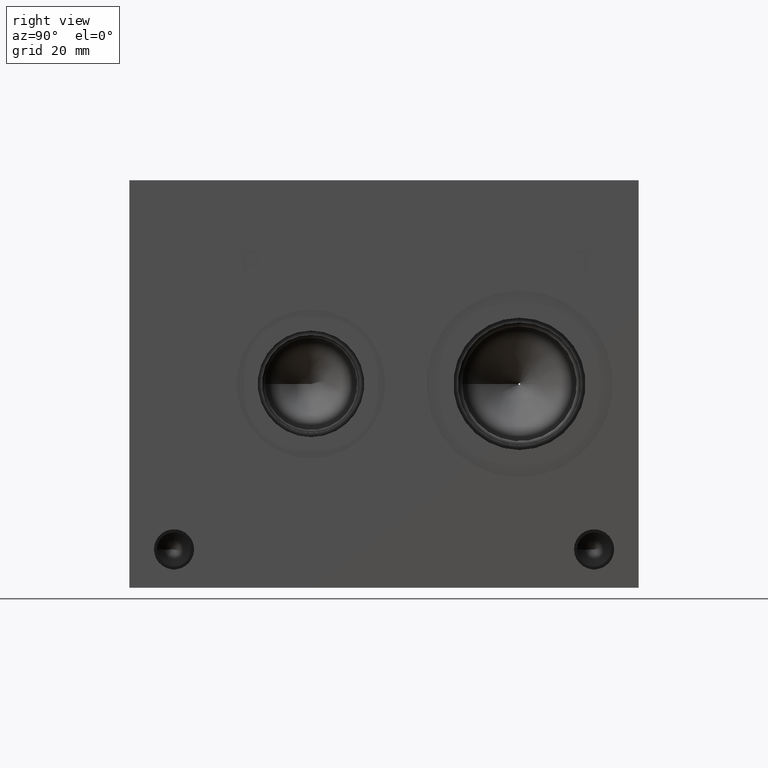
[diagram: clean part render]
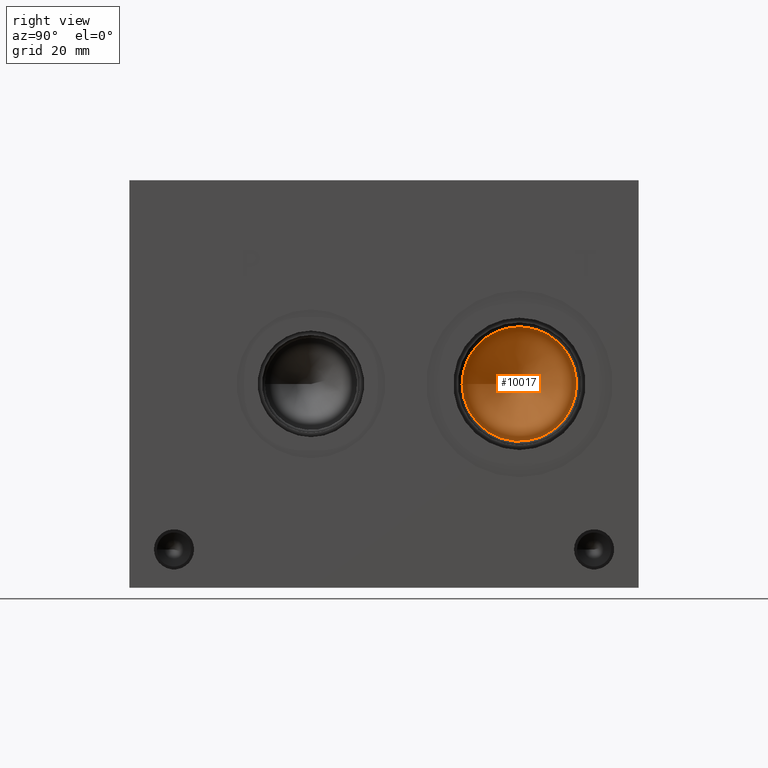
[diagram: same view with one face highlighted and labeled with its STEP entity id]
A machine part, right view. The second image highlights one B-rep face of the part: STEP entity #10017.
In plain terms, the highlighted conical surface has half-angle 60 deg.
Its self-contained STEP definition (entity closure, byte-faithful):
#62=CONICAL_SURFACE('',#10463,7.14375,1.0471975511966);
#126=CIRCLE('',#10464,14.2875);
#127=CIRCLE('',#10465,0.209391036080167);
#128=CIRCLE('',#10466,14.2875);
#1081=FACE_OUTER_BOUND('',#1647,.T.);
#1647=EDGE_LOOP('',(#8646,#8647,#8648,#8649,#8650));
#2661=LINE('',#16833,#3631);
#3631=VECTOR('',#12290,7.14375);
#4754=VERTEX_POINT('',#16829);
#4755=VERTEX_POINT('',#16830);
#4756=VERTEX_POINT('',#16832);
#6096=EDGE_CURVE('',#4754,#4755,#126,.T.);
#6097=EDGE_CURVE('',#4755,#4756,#2661,.T.);
#6098=EDGE_CURVE('',#4756,#4756,#127,.T.);
#6099=EDGE_CURVE('',#4755,#4754,#128,.T.);
#8646=ORIENTED_EDGE('',*,*,#6096,.T.);
#8647=ORIENTED_EDGE('',*,*,#6097,.T.);
#8648=ORIENTED_EDGE('',*,*,#6098,.F.);
#8649=ORIENTED_EDGE('',*,*,#6097,.F.);
#8650=ORIENTED_EDGE('',*,*,#6099,.T.);
#10017=ADVANCED_FACE('',(#1081),#62,.F.);
#10463=AXIS2_PLACEMENT_3D('',#16828,#12286,#12287);
#10464=AXIS2_PLACEMENT_3D('',#16831,#12288,#12289);
#10465=AXIS2_PLACEMENT_3D('',#16834,#12291,#12292);
#10466=AXIS2_PLACEMENT_3D('',#16835,#12293,#12294);
#12286=DIRECTION('center_axis',(1.,0.,0.));
#12287=DIRECTION('ref_axis',(0.,1.,0.));
#12288=DIRECTION('center_axis',(1.,0.,0.));
#12289=DIRECTION('ref_axis',(0.,1.,0.));
#12290=DIRECTION('',(-0.5,0.866025403784439,1.06057523872491E-16));
#12291=DIRECTION('center_axis',(1.,0.,0.));
#12292=DIRECTION('ref_axis',(0.,1.,0.));
#12293=DIRECTION('center_axis',(1.,0.,0.));
#12294=DIRECTION('ref_axis',(0.,1.,0.));
#16828=CARTESIAN_POINT('Origin',(45.2785540144766,97.2566,50.8));
#16829=CARTESIAN_POINT('',(49.403,111.5441,50.8));
#16830=CARTESIAN_POINT('',(49.403,82.9691,50.8));
#16831=CARTESIAN_POINT('Origin',(49.403,97.2566,50.8));
#16832=CARTESIAN_POINT('',(41.275,97.0472089639198,50.8));
#16833=CARTESIAN_POINT('',(45.2785540144766,90.11285,50.8));
#16834=CARTESIAN_POINT('Origin',(41.275,97.2566,50.8));
#16835=CARTESIAN_POINT('Origin',(49.403,97.2566,50.8));